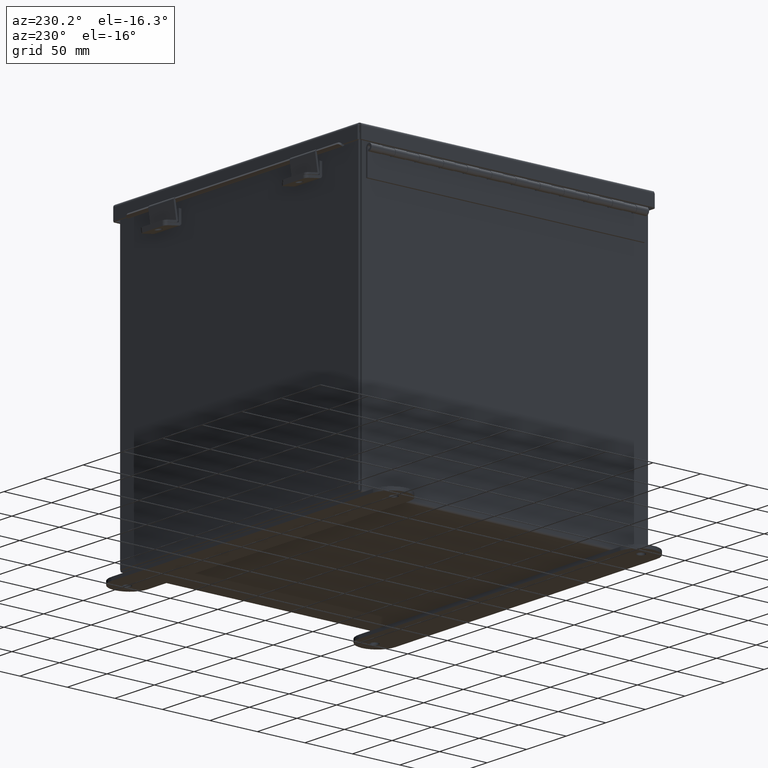
[diagram: clean part render]
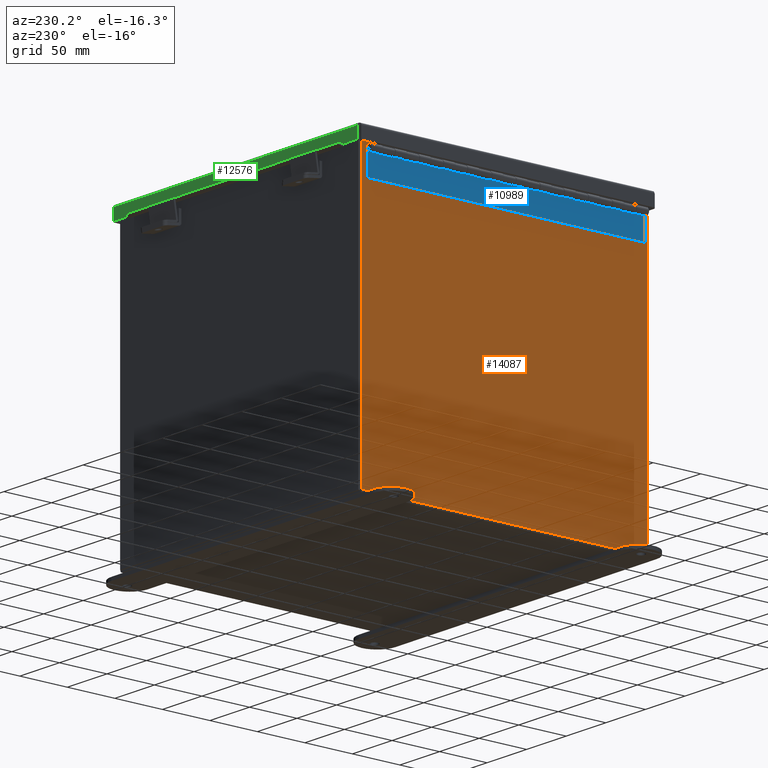
[diagram: same view with three faces highlighted in distinct colors, each labeled with its STEP entity id]
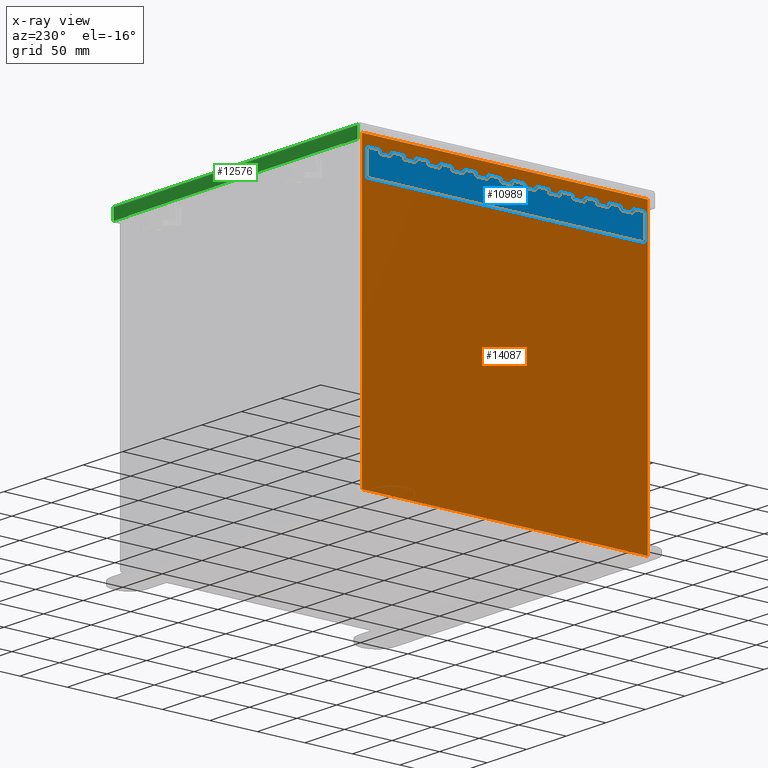
[diagram: x-ray of the same camera — body ghosted, the three highlighted faces saturated]
A machine part, auxiliary view with three faces highlighted in distinct colors.
The next image is the same camera in x-ray (body ghosted, the three faces saturated) — at least one of them is partly hidden behind the body in this view.
Their STEP definitions:

[orange] entity #14087 — the highlighted planar face has unit normal (1, 0, 0).
#174 = AXIS2_PLACEMENT_3D ( 'NONE', #1804, #10420, #3012 ) ;
#537 = ORIENTED_EDGE ( 'NONE', *, *, #7138, .T. ) ;
#1182 = CARTESIAN_POINT ( 'NONE',  ( -6.000000000000040000, -5.925299999999998200, 11.83759999999999800 ) ) ;
#1528 = LINE ( 'NONE', #1182, #14268 ) ;
#1804 = CARTESIAN_POINT ( 'NONE',  ( -5.999999999999998200, 0.0000000000000000000, -2.128280327564064900E-014 ) ) ;
#1941 = DIRECTION ( 'NONE',  ( 3.503965158194252100E-015, 0.0000000000000000000, -1.000000000000000000 ) ) ;
#2165 = CARTESIAN_POINT ( 'NONE',  ( -6.000000000000040000, 5.925300000000000000, 11.83759999999999800 ) ) ;
#2278 = EDGE_CURVE ( 'NONE', #14693, #3308, #6815, .T. ) ;
#2598 = CARTESIAN_POINT ( 'NONE',  ( -5.999999999999998200, -5.925300000000000000, -2.019006407817494600E-014 ) ) ;
#2798 = CARTESIAN_POINT ( 'NONE',  ( -5.999999999999998200, 5.925300000000000000, 0.01299999999999984300 ) ) ;
#3012 = DIRECTION ( 'NONE',  ( 3.503965158194251300E-015, 0.0000000000000000000, -1.000000000000000000 ) ) ;
#3308 = VERTEX_POINT ( 'NONE', #14608 ) ;
#3341 = VECTOR ( 'NONE', #5081, 39.37007874015748100 ) ;
#4208 = VERTEX_POINT ( 'NONE', #2165 ) ;
#4480 = EDGE_CURVE ( 'NONE', #14693, #12380, #6660, .T. ) ;
#4834 = EDGE_CURVE ( 'NONE', #4208, #3308, #15500, .T. ) ;
#5081 = DIRECTION ( 'NONE',  ( -3.503965158194252100E-015, 1.844192188523290500E-016, 1.000000000000000000 ) ) ;
#5639 = VECTOR ( 'NONE', #10175, 39.37007874015748100 ) ;
#6077 = DIRECTION ( 'NONE',  ( 0.0000000000000000000, 1.000000000000000000, 0.0000000000000000000 ) ) ;
#6614 = FACE_OUTER_BOUND ( 'NONE', #11906, .T. ) ;
#6660 = LINE ( 'NONE', #2598, #3341 ) ;
#6815 = LINE ( 'NONE', #2798, #5639 ) ;
#6827 = CARTESIAN_POINT ( 'NONE',  ( -6.000000000000040000, -5.925299999999997300, 11.83759999999999800 ) ) ;
#7138 = EDGE_CURVE ( 'NONE', #12380, #4208, #1528, .T. ) ;
#7150 = ORIENTED_EDGE ( 'NONE', *, *, #4480, .T. ) ;
#8955 = VECTOR ( 'NONE', #1941, 39.37007874015748100 ) ;
#9684 = CARTESIAN_POINT ( 'NONE',  ( -5.999999999999998200, -5.925299999999999100, 0.01299999999999984300 ) ) ;
#10175 = DIRECTION ( 'NONE',  ( -0.0000000000000000000, 1.000000000000000000, -0.0000000000000000000 ) ) ;
#10420 = DIRECTION ( 'NONE',  ( 1.000000000000000000, 0.0000000000000000000, 3.503965158194251300E-015 ) ) ;
#10552 = CARTESIAN_POINT ( 'NONE',  ( -5.999999999999998200, 5.925300000000000000, -2.128280327564064900E-014 ) ) ;
#11661 = ORIENTED_EDGE ( 'NONE', *, *, #4834, .T. ) ;
#11906 = EDGE_LOOP ( 'NONE', ( #537, #11661, #15857, #7150 ) ) ;
#12380 = VERTEX_POINT ( 'NONE', #6827 ) ;
#12856 = PLANE ( 'NONE',  #174 ) ;
#14087 = ADVANCED_FACE ( 'NONE', ( #6614 ), #12856, .F. ) ;
#14268 = VECTOR ( 'NONE', #6077, 39.37007874015748100 ) ;
#14608 = CARTESIAN_POINT ( 'NONE',  ( -5.999999999999998200, 5.925300000000000000, 0.01299999999999984300 ) ) ;
#14693 = VERTEX_POINT ( 'NONE', #9684 ) ;
#15500 = LINE ( 'NONE', #10552, #8955 ) ;
#15857 = ORIENTED_EDGE ( 'NONE', *, *, #2278, .F. ) ;

[blue] entity #10989 — the highlighted planar face has unit normal (1, -0, 0).
#132 = LINE ( 'NONE', #13909, #12868 ) ;
#140 = PLANE ( 'NONE',  #15943 ) ;
#177 = CARTESIAN_POINT ( 'NONE',  ( 0.0000000000000000000, 5.000000000000000000, 0.0000000000000000000 ) ) ;
#252 = VERTEX_POINT ( 'NONE', #8778 ) ;
#255 = ORIENTED_EDGE ( 'NONE', *, *, #9895, .F. ) ;
#285 = ORIENTED_EDGE ( 'NONE', *, *, #1126, .F. ) ;
#291 = DIRECTION ( 'NONE',  ( -1.000000000000000000, -0.0000000000000000000, -0.0000000000000000000 ) ) ;
#342 = LINE ( 'NONE', #4831, #15945 ) ;
#415 = VERTEX_POINT ( 'NONE', #5356 ) ;
#457 = LINE ( 'NONE', #9236, #13198 ) ;
#483 = DIRECTION ( 'NONE',  ( -1.000000000000000000, 8.005415366049128100E-015, 0.0000000000000000000 ) ) ;
#571 = EDGE_CURVE ( 'NONE', #9835, #7305, #10292, .T. ) ;
#632 = CARTESIAN_POINT ( 'NONE',  ( 0.2730000000000000200, 5.499999999999997300, 0.0000000000000000000 ) ) ;
#649 = CARTESIAN_POINT ( 'NONE',  ( 0.1365000000000000100, 0.0000000000000000000, -1.707404996040164500E-017 ) ) ;
#684 = CARTESIAN_POINT ( 'NONE',  ( 0.2730000000000000200, 0.9999999999999992200, 0.0000000000000000000 ) ) ;
#706 = VECTOR ( 'NONE', #2131, 39.37007874015748100 ) ;
#717 = ORIENTED_EDGE ( 'NONE', *, *, #2409, .F. ) ;
#790 = CARTESIAN_POINT ( 'NONE',  ( 0.2730000000000000200, 10.49999999999999800, 0.0000000000000000000 ) ) ;
#796 = VERTEX_POINT ( 'NONE', #3685 ) ;
#841 = ORIENTED_EDGE ( 'NONE', *, *, #571, .F. ) ;
#1110 = VERTEX_POINT ( 'NONE', #14159 ) ;
#1126 = EDGE_CURVE ( 'NONE', #15247, #3750, #457, .T. ) ;
#1204 = CARTESIAN_POINT ( 'NONE',  ( 0.2730000000000000200, 4.499999999999998200, 0.0000000000000000000 ) ) ;
#1214 = CARTESIAN_POINT ( 'NONE',  ( 0.0000000000000000000, 2.999999999999999600, 0.0000000000000000000 ) ) ;
#1225 = VERTEX_POINT ( 'NONE', #10644 ) ;
#1231 = VERTEX_POINT ( 'NONE', #4432 ) ;
#1240 = CARTESIAN_POINT ( 'NONE',  ( 0.1365000000000000100, 0.0000000000000000000, -1.707404996040164500E-017 ) ) ;
#1290 = ORIENTED_EDGE ( 'NONE', *, *, #2700, .F. ) ;
#1349 = VERTEX_POINT ( 'NONE', #8111 ) ;
#1380 = DIRECTION ( 'NONE',  ( 0.0000000000000000000, 0.0000000000000000000, -1.000000000000000000 ) ) ;
#1430 = ORIENTED_EDGE ( 'NONE', *, *, #12213, .F. ) ;
#1503 = DIRECTION ( 'NONE',  ( 0.0000000000000000000, 1.000000000000000000, 0.0000000000000000000 ) ) ;
#1504 = CARTESIAN_POINT ( 'NONE',  ( 0.2730000000000000200, -2.999999999999999600, 0.0000000000000000000 ) ) ;
#1510 = ORIENTED_EDGE ( 'NONE', *, *, #10569, .F. ) ;
#1602 = VECTOR ( 'NONE', #5959, 39.37007874015748100 ) ;
#1630 = DIRECTION ( 'NONE',  ( 0.0000000000000000000, 1.000000000000000000, 0.0000000000000000000 ) ) ;
#1631 = CARTESIAN_POINT ( 'NONE',  ( 0.1365000000000000100, 0.0000000000000000000, -1.707404996040164500E-017 ) ) ;
#1632 = EDGE_CURVE ( 'NONE', #2875, #2444, #3693, .T. ) ;
#1667 = EDGE_CURVE ( 'NONE', #10421, #1231, #9486, .T. ) ;
#1668 = CARTESIAN_POINT ( 'NONE',  ( 0.2730000000000000200, 7.499999999999998200, 0.0000000000000000000 ) ) ;
#1728 = VERTEX_POINT ( 'NONE', #4361 ) ;
#1875 = CARTESIAN_POINT ( 'NONE',  ( 0.1365000000000000100, 2.500000000000000000, -1.707404996040164500E-017 ) ) ;
#1944 = CARTESIAN_POINT ( 'NONE',  ( 0.1365000000000000100, 8.000000000000000000, -1.707404996040164500E-017 ) ) ;
#1945 = VECTOR ( 'NONE', #7903, 39.37007874015748100 ) ;
#2101 = VECTOR ( 'NONE', #15388, 39.37007874015748100 ) ;
#2131 = DIRECTION ( 'NONE',  ( 0.0000000000000000000, 1.000000000000000000, 0.0000000000000000000 ) ) ;
#2158 = ORIENTED_EDGE ( 'NONE', *, *, #14478, .F. ) ;
#2378 = EDGE_CURVE ( 'NONE', #9578, #5445, #4477, .T. ) ;
#2409 = EDGE_CURVE ( 'NONE', #9728, #8779, #13585, .T. ) ;
#2416 = VECTOR ( 'NONE', #4111, 39.37007874015748100 ) ;
#2444 = VERTEX_POINT ( 'NONE', #13006 ) ;
#2453 = VERTEX_POINT ( 'NONE', #1875 ) ;
#2474 = ORIENTED_EDGE ( 'NONE', *, *, #3851, .F. ) ;
#2491 = LINE ( 'NONE', #9253, #2101 ) ;
#2535 = CARTESIAN_POINT ( 'NONE',  ( 0.0000000000000000000, 8.999999999999998200, 0.0000000000000000000 ) ) ;
#2578 = DIRECTION ( 'NONE',  ( -1.000000000000000000, 8.005415366049128100E-015, 0.0000000000000000000 ) ) ;
#2590 = ORIENTED_EDGE ( 'NONE', *, *, #14612, .T. ) ;
#2617 = LINE ( 'NONE', #5812, #12064 ) ;
#2639 = VECTOR ( 'NONE', #9365, 39.37007874015748100 ) ;
#2676 = CARTESIAN_POINT ( 'NONE',  ( 0.1365000000000000100, 1.499999999999999800, -1.707404996040164500E-017 ) ) ;
#2689 = LINE ( 'NONE', #9520, #15399 ) ;
#2700 = EDGE_CURVE ( 'NONE', #13167, #1225, #342, .T. ) ;
#2780 = CARTESIAN_POINT ( 'NONE',  ( 0.0000000000000000000, 5.999999999999999100, 0.0000000000000000000 ) ) ;
#2820 = DIRECTION ( 'NONE',  ( 0.0000000000000000000, 1.000000000000000000, 0.0000000000000000000 ) ) ;
#2872 = VECTOR ( 'NONE', #13928, 39.37007874015748100 ) ;
#2875 = VERTEX_POINT ( 'NONE', #7699 ) ;
#2939 = CARTESIAN_POINT ( 'NONE',  ( 8.405686134351585600E-014, 5.500000000000000000, 0.0000000000000000000 ) ) ;
#2967 = LINE ( 'NONE', #6437, #5860 ) ;
#2991 = VERTEX_POINT ( 'NONE', #15318 ) ;
#2996 = DIRECTION ( 'NONE',  ( 1.000000000000000000, 0.0000000000000000000, 0.0000000000000000000 ) ) ;
#3002 = CARTESIAN_POINT ( 'NONE',  ( 0.2730000000000000200, -8.000000000000000000, 0.0000000000000000000 ) ) ;
#3013 = ORIENTED_EDGE ( 'NONE', *, *, #4991, .T. ) ;
#3046 = VERTEX_POINT ( 'NONE', #10474 ) ;
#3082 = LINE ( 'NONE', #11215, #5987 ) ;
#3125 = VECTOR ( 'NONE', #15386, 39.37007874015748100 ) ;
#3131 = LINE ( 'NONE', #15240, #6038 ) ;
#3140 = VERTEX_POINT ( 'NONE', #10631 ) ;
#3256 = VECTOR ( 'NONE', #8551, 39.37007874015748100 ) ;
#3283 = ORIENTED_EDGE ( 'NONE', *, *, #3718, .F. ) ;
#3328 = LINE ( 'NONE', #14759, #9521 ) ;
#3433 = DIRECTION ( 'NONE',  ( -1.000000000000000000, 8.005415366049128100E-015, 0.0000000000000000000 ) ) ;
#3445 = VECTOR ( 'NONE', #13690, 39.37007874015748100 ) ;
#3453 = VERTEX_POINT ( 'NONE', #7449 ) ;
#3587 = VERTEX_POINT ( 'NONE', #7290 ) ;
#3675 = ORIENTED_EDGE ( 'NONE', *, *, #13010, .F. ) ;
#3685 = CARTESIAN_POINT ( 'NONE',  ( 0.2730000000000000200, 11.00000000000000000, 0.0000000000000000000 ) ) ;
#3693 = LINE ( 'NONE', #11620, #9880 ) ;
#3718 = EDGE_CURVE ( 'NONE', #9635, #8692, #13051, .T. ) ;
#3727 = VECTOR ( 'NONE', #9293, 39.37007874015748100 ) ;
#3750 = VERTEX_POINT ( 'NONE', #3950 ) ;
#3753 = DIRECTION ( 'NONE',  ( -1.000000000000000000, 0.0000000000000000000, 0.0000000000000000000 ) ) ;
#3783 = LINE ( 'NONE', #649, #10734 ) ;
#3823 = CARTESIAN_POINT ( 'NONE',  ( 0.2730000000000000200, -1.000000000000000000, 0.0000000000000000000 ) ) ;
#3824 = CARTESIAN_POINT ( 'NONE',  ( 0.2730000000000000200, 1.499999999999997600, 0.0000000000000000000 ) ) ;
#3829 = VERTEX_POINT ( 'NONE', #13940 ) ;
#3838 = ORIENTED_EDGE ( 'NONE', *, *, #9959, .T. ) ;
#3851 = EDGE_CURVE ( 'NONE', #3829, #9323, #14764, .T. ) ;
#3894 = ORIENTED_EDGE ( 'NONE', *, *, #14808, .T. ) ;
#3950 = CARTESIAN_POINT ( 'NONE',  ( 0.1365000000000000100, 4.000000000000000000, -1.707404996040164500E-017 ) ) ;
#4012 = EDGE_CURVE ( 'NONE', #11844, #13026, #2617, .T. ) ;
#4052 = DIRECTION ( 'NONE',  ( -1.000000000000000000, 8.005415366049128100E-015, 0.0000000000000000000 ) ) ;
#4061 = VECTOR ( 'NONE', #13382, 39.37007874015748100 ) ;
#4111 = DIRECTION ( 'NONE',  ( 0.0000000000000000000, 1.000000000000000000, 0.0000000000000000000 ) ) ;
#4153 = DIRECTION ( 'NONE',  ( 0.0000000000000000000, 1.000000000000000000, 0.0000000000000000000 ) ) ;
#4184 = DIRECTION ( 'NONE',  ( -1.000000000000000000, 0.0000000000000000000, 0.0000000000000000000 ) ) ;
#4361 = CARTESIAN_POINT ( 'NONE',  ( 0.1364999999999999000, 0.0000000000000000000, 0.0000000000000000000 ) ) ;
#4386 = EDGE_CURVE ( 'NONE', #1225, #2453, #14365, .T. ) ;
#4412 = VECTOR ( 'NONE', #3753, 39.37007874015748100 ) ;
#4432 = CARTESIAN_POINT ( 'NONE',  ( 0.2730000000000000200, 2.999999999999999600, 0.0000000000000000000 ) ) ;
#4477 = LINE ( 'NONE', #7918, #7777 ) ;
#4515 = VECTOR ( 'NONE', #8622, 39.37007874015748100 ) ;
#4523 = CARTESIAN_POINT ( 'NONE',  ( 0.1365000000000000100, 5.000000000000000000, -1.707404996040164500E-017 ) ) ;
#4524 = EDGE_CURVE ( 'NONE', #9250, #13026, #2967, .T. ) ;
#4557 = VECTOR ( 'NONE', #4153, 39.37007874015748100 ) ;
#4632 = ORIENTED_EDGE ( 'NONE', *, *, #8047, .T. ) ;
#4799 = VERTEX_POINT ( 'NONE', #684 ) ;
#4814 = CARTESIAN_POINT ( 'NONE',  ( 0.2730000000000000200, 4.000000000000000000, 0.0000000000000000000 ) ) ;
#4831 = CARTESIAN_POINT ( 'NONE',  ( 0.0000000000000000000, 1.999999999999999300, 0.0000000000000000000 ) ) ;
#4869 = LINE ( 'NONE', #13375, #1602 ) ;
#4991 = EDGE_CURVE ( 'NONE', #6469, #1349, #3328, .T. ) ;
#4995 = CARTESIAN_POINT ( 'NONE',  ( 1.136499999999999800, 11.50000000000000000, 0.0000000000000000000 ) ) ;
#5137 = CARTESIAN_POINT ( 'NONE',  ( 0.1365000000000000100, 0.0000000000000000000, -1.707404996040164500E-017 ) ) ;
#5231 = LINE ( 'NONE', #2939, #1945 ) ;
#5242 = DIRECTION ( 'NONE',  ( 0.0000000000000000000, 1.000000000000000000, 0.0000000000000000000 ) ) ;
#5250 = EDGE_CURVE ( 'NONE', #7305, #252, #3131, .T. ) ;
#5284 = CARTESIAN_POINT ( 'NONE',  ( 8.405686134351585600E-014, 9.500000000000000000, 0.0000000000000000000 ) ) ;
#5330 = LINE ( 'NONE', #10244, #9004 ) ;
#5352 = LINE ( 'NONE', #15892, #8246 ) ;
#5356 = CARTESIAN_POINT ( 'NONE',  ( 0.1365000000000000100, 11.50000000000000000, -1.707404996040164500E-017 ) ) ;
#5377 = LINE ( 'NONE', #5284, #2872 ) ;
#5445 = VERTEX_POINT ( 'NONE', #6948 ) ;
#5523 = DIRECTION ( 'NONE',  ( 0.0000000000000000000, 1.000000000000000000, 0.0000000000000000000 ) ) ;
#5565 = LINE ( 'NONE', #8847, #11765 ) ;
#5636 = LINE ( 'NONE', #8343, #11836 ) ;
#5751 = ORIENTED_EDGE ( 'NONE', *, *, #12933, .F. ) ;
#5767 = LINE ( 'NONE', #14565, #9435 ) ;
#5800 = VECTOR ( 'NONE', #2996, 39.37007874015748100 ) ;
#5812 = CARTESIAN_POINT ( 'NONE',  ( 8.405686134351585600E-014, 10.50000000000000000, 0.0000000000000000000 ) ) ;
#5826 = EDGE_CURVE ( 'NONE', #10421, #2453, #5636, .T. ) ;
#5860 = VECTOR ( 'NONE', #1503, 39.37007874015748100 ) ;
#5885 = EDGE_CURVE ( 'NONE', #6469, #9315, #4869, .T. ) ;
#5959 = DIRECTION ( 'NONE',  ( 0.0000000000000000000, 1.000000000000000000, 0.0000000000000000000 ) ) ;
#5971 = CARTESIAN_POINT ( 'NONE',  ( 0.2730000000000000200, 0.0000000000000000000, 0.0000000000000000000 ) ) ;
#5987 = VECTOR ( 'NONE', #2578, 39.37007874015748100 ) ;
#6000 = ORIENTED_EDGE ( 'NONE', *, *, #8974, .F. ) ;
#6038 = VECTOR ( 'NONE', #4184, 39.37007874015748100 ) ;
#6095 = EDGE_CURVE ( 'NONE', #3140, #9635, #12007, .T. ) ;
#6129 = DIRECTION ( 'NONE',  ( -1.000000000000000000, 8.005415366049128100E-015, 0.0000000000000000000 ) ) ;
#6316 = ORIENTED_EDGE ( 'NONE', *, *, #5885, .F. ) ;
#6437 = CARTESIAN_POINT ( 'NONE',  ( 0.1365000000000000100, 0.0000000000000000000, -1.707404996040164500E-017 ) ) ;
#6469 = VERTEX_POINT ( 'NONE', #1204 ) ;
#6514 = DIRECTION ( 'NONE',  ( -1.000000000000000000, 0.0000000000000000000, 0.0000000000000000000 ) ) ;
#6651 = CARTESIAN_POINT ( 'NONE',  ( 0.1365000000000000100, 0.0000000000000000000, -1.707404996040164500E-017 ) ) ;
#6662 = CARTESIAN_POINT ( 'NONE',  ( 0.2730000000000000200, 8.499999999999996400, 0.0000000000000000000 ) ) ;
#6759 = EDGE_LOOP ( 'NONE', ( #10434, #12892, #2590, #8664, #10016, #8496, #9090, #255, #9461, #8441, #12550, #14039, #4632, #2474, #11687, #14217, #3838, #717, #14108, #2158, #14555, #1430, #12361, #841, #11405, #3283, #12055, #6000, #12448, #1510, #10902, #6316, #3013, #3675, #285, #7750, #14484, #5751, #15553, #7904, #9270, #13997, #1290, #10751, #3894, #11841, #12381, #10121 ) ) ;
#6760 = LINE ( 'NONE', #9938, #3445 ) ;
#6837 = EDGE_CURVE ( 'NONE', #4799, #2991, #15228, .T. ) ;
#6865 = VECTOR ( 'NONE', #12541, 39.37007874015748100 ) ;
#6874 = CARTESIAN_POINT ( 'NONE',  ( 0.2730000000000000200, -4.000000000000000000, 0.0000000000000000000 ) ) ;
#6900 = LINE ( 'NONE', #12765, #13081 ) ;
#6945 = VERTEX_POINT ( 'NONE', #4523 ) ;
#6948 = CARTESIAN_POINT ( 'NONE',  ( 0.1365000000000000100, 7.500000000000000000, -1.707404996040164500E-017 ) ) ;
#6969 = CARTESIAN_POINT ( 'NONE',  ( 0.1365000000000000100, 3.500000000000000400, -1.707404996040164500E-017 ) ) ;
#7061 = DIRECTION ( 'NONE',  ( -1.000000000000000000, 8.005415366049128100E-015, 0.0000000000000000000 ) ) ;
#7088 = LINE ( 'NONE', #177, #10357 ) ;
#7191 = DIRECTION ( 'NONE',  ( -1.000000000000000000, 0.0000000000000000000, 0.0000000000000000000 ) ) ;
#7200 = CARTESIAN_POINT ( 'NONE',  ( 0.1365000000000000100, 8.500000000000000000, -1.707404996040164500E-017 ) ) ;
#7273 = DIRECTION ( 'NONE',  ( 0.0000000000000000000, 1.000000000000000000, 0.0000000000000000000 ) ) ;
#7290 = CARTESIAN_POINT ( 'NONE',  ( 0.1365000000000000100, 11.00000000000000000, -1.707404996040164500E-017 ) ) ;
#7305 = VERTEX_POINT ( 'NONE', #12483 ) ;
#7449 = CARTESIAN_POINT ( 'NONE',  ( 0.2730000000000000200, 9.499999999999998200, 0.0000000000000000000 ) ) ;
#7467 = CARTESIAN_POINT ( 'NONE',  ( 0.1365000000000000100, 0.0000000000000000000, -1.707404996040164500E-017 ) ) ;
#7572 = DIRECTION ( 'NONE',  ( 0.0000000000000000000, 1.000000000000000000, 0.0000000000000000000 ) ) ;
#7643 = CARTESIAN_POINT ( 'NONE',  ( 0.2730000000000000200, 8.999999999999998200, 0.0000000000000000000 ) ) ;
#7650 = VERTEX_POINT ( 'NONE', #6969 ) ;
#7699 = CARTESIAN_POINT ( 'NONE',  ( 1.136500000000000100, 0.0000000000000000000, 0.0000000000000000000 ) ) ;
#7750 = ORIENTED_EDGE ( 'NONE', *, *, #13426, .F. ) ;
#7759 = EDGE_CURVE ( 'NONE', #2991, #8648, #12324, .T. ) ;
#7777 = VECTOR ( 'NONE', #483, 39.37007874015748100 ) ;
#7806 = EDGE_CURVE ( 'NONE', #1728, #14288, #5352, .T. ) ;
#7890 = EDGE_CURVE ( 'NONE', #12125, #3829, #11153, .T. ) ;
#7903 = DIRECTION ( 'NONE',  ( -1.000000000000000000, 8.005415366049128100E-015, 0.0000000000000000000 ) ) ;
#7904 = ORIENTED_EDGE ( 'NONE', *, *, #1667, .F. ) ;
#7918 = CARTESIAN_POINT ( 'NONE',  ( 8.405686134351585600E-014, 7.500000000000000000, 0.0000000000000000000 ) ) ;
#7982 = CARTESIAN_POINT ( 'NONE',  ( 0.2730000000000000200, 0.4999999999999973900, 0.0000000000000000000 ) ) ;
#8047 = EDGE_CURVE ( 'NONE', #3453, #9323, #5377, .T. ) ;
#8050 = VECTOR ( 'NONE', #8702, 39.37007874015748100 ) ;
#8111 = CARTESIAN_POINT ( 'NONE',  ( 0.1365000000000000100, 4.500000000000000900, -1.707404996040164500E-017 ) ) ;
#8246 = VECTOR ( 'NONE', #7273, 39.37007874015748100 ) ;
#8294 = CARTESIAN_POINT ( 'NONE',  ( 0.2730000000000000200, 6.499999999999998200, 0.0000000000000000000 ) ) ;
#8296 = CARTESIAN_POINT ( 'NONE',  ( 0.2730000000000000200, 1.999999999999999300, 0.0000000000000000000 ) ) ;
#8343 = CARTESIAN_POINT ( 'NONE',  ( 8.405686134351585600E-014, 2.500000000000000000, 0.0000000000000000000 ) ) ;
#8405 = CARTESIAN_POINT ( 'NONE',  ( 0.1365000000000000100, 0.0000000000000000000, -1.707404996040164500E-017 ) ) ;
#8441 = ORIENTED_EDGE ( 'NONE', *, *, #4524, .F. ) ;
#8496 = ORIENTED_EDGE ( 'NONE', *, *, #8906, .F. ) ;
#8551 = DIRECTION ( 'NONE',  ( -1.000000000000000000, 8.005415366049128100E-015, 0.0000000000000000000 ) ) ;
#8622 = DIRECTION ( 'NONE',  ( 0.0000000000000000000, 1.000000000000000000, 0.0000000000000000000 ) ) ;
#8648 = VERTEX_POINT ( 'NONE', #2676 ) ;
#8651 = DIRECTION ( 'NONE',  ( -1.000000000000000000, 0.0000000000000000000, 0.0000000000000000000 ) ) ;
#8664 = ORIENTED_EDGE ( 'NONE', *, *, #1632, .T. ) ;
#8672 = VECTOR ( 'NONE', #13020, 39.37007874015748100 ) ;
#8692 = VERTEX_POINT ( 'NONE', #12611 ) ;
#8702 = DIRECTION ( 'NONE',  ( 0.0000000000000000000, 1.000000000000000000, 0.0000000000000000000 ) ) ;
#8778 = CARTESIAN_POINT ( 'NONE',  ( 0.1365000000000000100, 7.000000000000000000, -1.707404996040164500E-017 ) ) ;
#8779 = VERTEX_POINT ( 'NONE', #7200 ) ;
#8847 = CARTESIAN_POINT ( 'NONE',  ( 0.0000000000000000000, 11.50000000000000000, 0.0000000000000000000 ) ) ;
#8906 = EDGE_CURVE ( 'NONE', #3587, #415, #14614, .T. ) ;
#8974 = EDGE_CURVE ( 'NONE', #11761, #3140, #6900, .T. ) ;
#8997 = VECTOR ( 'NONE', #4052, 39.37007874015748100 ) ;
#9004 = VECTOR ( 'NONE', #1630, 39.37007874015748100 ) ;
#9024 = VECTOR ( 'NONE', #9641, 39.37007874015748100 ) ;
#9082 = LINE ( 'NONE', #9153, #5800 ) ;
#9090 = ORIENTED_EDGE ( 'NONE', *, *, #10903, .F. ) ;
#9153 = CARTESIAN_POINT ( 'NONE',  ( 0.0000000000000000000, 0.0000000000000000000, 0.0000000000000000000 ) ) ;
#9229 = LINE ( 'NONE', #13538, #10963 ) ;
#9236 = CARTESIAN_POINT ( 'NONE',  ( 0.0000000000000000000, 4.000000000000000000, 0.0000000000000000000 ) ) ;
#9250 = VERTEX_POINT ( 'NONE', #15740 ) ;
#9253 = CARTESIAN_POINT ( 'NONE',  ( 0.1365000000000000100, 0.0000000000000000000, -1.707404996040164500E-017 ) ) ;
#9270 = ORIENTED_EDGE ( 'NONE', *, *, #5826, .T. ) ;
#9280 = LINE ( 'NONE', #3823, #12185 ) ;
#9293 = DIRECTION ( 'NONE',  ( 0.0000000000000000000, 1.000000000000000000, 0.0000000000000000000 ) ) ;
#9315 = VERTEX_POINT ( 'NONE', #12253 ) ;
#9323 = VERTEX_POINT ( 'NONE', #13570 ) ;
#9365 = DIRECTION ( 'NONE',  ( -1.000000000000000000, 0.0000000000000000000, 0.0000000000000000000 ) ) ;
#9394 = VECTOR ( 'NONE', #7191, 39.37007874015748100 ) ;
#9421 = VERTEX_POINT ( 'NONE', #3824 ) ;
#9435 = VECTOR ( 'NONE', #3433, 39.37007874015748100 ) ;
#9461 = ORIENTED_EDGE ( 'NONE', *, *, #4012, .T. ) ;
#9486 = LINE ( 'NONE', #3002, #10263 ) ;
#9513 = CARTESIAN_POINT ( 'NONE',  ( 0.2730000000000000200, -10.00000000000000000, 0.0000000000000000000 ) ) ;
#9520 = CARTESIAN_POINT ( 'NONE',  ( 0.2730000000000000200, -9.000000000000000000, 0.0000000000000000000 ) ) ;
#9521 = VECTOR ( 'NONE', #6129, 39.37007874015748100 ) ;
#9537 = EDGE_CURVE ( 'NONE', #14644, #14288, #15541, .T. ) ;
#9578 = VERTEX_POINT ( 'NONE', #1668 ) ;
#9635 = VERTEX_POINT ( 'NONE', #12844 ) ;
#9641 = DIRECTION ( 'NONE',  ( 0.0000000000000000000, 1.000000000000000000, 0.0000000000000000000 ) ) ;
#9728 = VERTEX_POINT ( 'NONE', #1944 ) ;
#9774 = LINE ( 'NONE', #14569, #9394 ) ;
#9835 = VERTEX_POINT ( 'NONE', #8294 ) ;
#9880 = VECTOR ( 'NONE', #10346, 39.37007874015748100 ) ;
#9895 = EDGE_CURVE ( 'NONE', #11844, #796, #13535, .T. ) ;
#9938 = CARTESIAN_POINT ( 'NONE',  ( 8.405686134351585600E-014, 3.500000000000000400, 0.0000000000000000000 ) ) ;
#9959 = EDGE_CURVE ( 'NONE', #14036, #8779, #12757, .T. ) ;
#9998 = DIRECTION ( 'NONE',  ( -1.000000000000000000, 0.0000000000000000000, -0.0000000000000000000 ) ) ;
#10016 = ORIENTED_EDGE ( 'NONE', *, *, #15914, .T. ) ;
#10121 = ORIENTED_EDGE ( 'NONE', *, *, #11904, .F. ) ;
#10162 = LINE ( 'NONE', #9513, #706 ) ;
#10188 = FACE_OUTER_BOUND ( 'NONE', #6759, .T. ) ;
#10244 = CARTESIAN_POINT ( 'NONE',  ( 0.2730000000000000200, -2.000000000000000000, 0.0000000000000000000 ) ) ;
#10263 = VECTOR ( 'NONE', #12902, 39.37007874015748100 ) ;
#10267 = VECTOR ( 'NONE', #5523, 39.37007874015748100 ) ;
#10292 = LINE ( 'NONE', #6874, #3727 ) ;
#10346 = DIRECTION ( 'NONE',  ( -1.187759997245331800E-017, 1.000000000000000000, 0.0000000000000000000 ) ) ;
#10357 = VECTOR ( 'NONE', #13740, 39.37007874015748100 ) ;
#10421 = VERTEX_POINT ( 'NONE', #12630 ) ;
#10434 = ORIENTED_EDGE ( 'NONE', *, *, #9537, .T. ) ;
#10474 = CARTESIAN_POINT ( 'NONE',  ( 0.1365000000000000100, 5.500000000000000000, -1.707404996040164500E-017 ) ) ;
#10484 = DIRECTION ( 'NONE',  ( -1.000000000000000000, 0.0000000000000000000, 0.0000000000000000000 ) ) ;
#10569 = EDGE_CURVE ( 'NONE', #6945, #3046, #2491, .T. ) ;
#10617 = CARTESIAN_POINT ( 'NONE',  ( 0.0000000000000000000, 8.000000000000000000, 0.0000000000000000000 ) ) ;
#10631 = CARTESIAN_POINT ( 'NONE',  ( 0.2730000000000000200, 5.999999999999999100, 0.0000000000000000000 ) ) ;
#10644 = CARTESIAN_POINT ( 'NONE',  ( 0.1365000000000000100, 1.999999999999999300, -1.707404996040164500E-017 ) ) ;
#10734 = VECTOR ( 'NONE', #12968, 39.37007874015748100 ) ;
#10751 = ORIENTED_EDGE ( 'NONE', *, *, #10772, .F. ) ;
#10772 = EDGE_CURVE ( 'NONE', #9421, #13167, #2689, .T. ) ;
#10902 = ORIENTED_EDGE ( 'NONE', *, *, #11688, .F. ) ;
#10903 = EDGE_CURVE ( 'NONE', #796, #3587, #9229, .T. ) ;
#10963 = VECTOR ( 'NONE', #14746, 39.37007874015748100 ) ;
#10989 = ADVANCED_FACE ( 'NONE', ( #10188 ), #140, .F. ) ;
#11153 = LINE ( 'NONE', #2535, #4412 ) ;
#11215 = CARTESIAN_POINT ( 'NONE',  ( 8.405686134351585600E-014, 1.499999999999999800, 0.0000000000000000000 ) ) ;
#11342 = CARTESIAN_POINT ( 'NONE',  ( 0.2730000000000000200, 8.000000000000000000, 0.0000000000000000000 ) ) ;
#11405 = ORIENTED_EDGE ( 'NONE', *, *, #15693, .T. ) ;
#11432 = LINE ( 'NONE', #1504, #14686 ) ;
#11455 = CARTESIAN_POINT ( 'NONE',  ( 8.405686134351585600E-014, 0.4999999999999996100, 0.0000000000000000000 ) ) ;
#11494 = EDGE_CURVE ( 'NONE', #13169, #9250, #9774, .T. ) ;
#11531 = LINE ( 'NONE', #6651, #4557 ) ;
#11620 = CARTESIAN_POINT ( 'NONE',  ( 1.136500000000000100, 0.0000000000000000000, 0.0000000000000000000 ) ) ;
#11687 = ORIENTED_EDGE ( 'NONE', *, *, #7890, .F. ) ;
#11688 = EDGE_CURVE ( 'NONE', #9315, #6945, #7088, .T. ) ;
#11761 = VERTEX_POINT ( 'NONE', #632 ) ;
#11765 = VECTOR ( 'NONE', #291, 39.37007874015748100 ) ;
#11770 = CARTESIAN_POINT ( 'NONE',  ( 0.1365000000000000100, 10.50000000000000000, -1.707404996040164500E-017 ) ) ;
#11785 = CARTESIAN_POINT ( 'NONE',  ( 0.0000000000000000000, 0.9999999999999992200, 0.0000000000000000000 ) ) ;
#11836 = VECTOR ( 'NONE', #15716, 39.37007874015748100 ) ;
#11841 = ORIENTED_EDGE ( 'NONE', *, *, #7759, .F. ) ;
#11844 = VERTEX_POINT ( 'NONE', #790 ) ;
#11904 = EDGE_CURVE ( 'NONE', #14644, #4799, #10162, .T. ) ;
#12007 = LINE ( 'NONE', #2780, #14908 ) ;
#12026 = EDGE_CURVE ( 'NONE', #1231, #1110, #15545, .T. ) ;
#12055 = ORIENTED_EDGE ( 'NONE', *, *, #6095, .F. ) ;
#12059 = DIRECTION ( 'NONE',  ( 0.0000000000000000000, 1.000000000000000000, 0.0000000000000000000 ) ) ;
#12064 = VECTOR ( 'NONE', #7061, 39.37007874015748100 ) ;
#12125 = VERTEX_POINT ( 'NONE', #7643 ) ;
#12185 = VECTOR ( 'NONE', #7572, 39.37007874015748100 ) ;
#12213 = EDGE_CURVE ( 'NONE', #252, #5445, #132, .T. ) ;
#12234 = CARTESIAN_POINT ( 'NONE',  ( 8.405686134351585600E-014, 8.500000000000000000, 0.0000000000000000000 ) ) ;
#12253 = CARTESIAN_POINT ( 'NONE',  ( 0.2730000000000000200, 5.000000000000000000, 0.0000000000000000000 ) ) ;
#12289 = VECTOR ( 'NONE', #8651, 39.37007874015748100 ) ;
#12324 = LINE ( 'NONE', #8405, #9024 ) ;
#12361 = ORIENTED_EDGE ( 'NONE', *, *, #5250, .F. ) ;
#12381 = ORIENTED_EDGE ( 'NONE', *, *, #6837, .F. ) ;
#12448 = ORIENTED_EDGE ( 'NONE', *, *, #14938, .T. ) ;
#12483 = CARTESIAN_POINT ( 'NONE',  ( 0.2730000000000000200, 7.000000000000000000, 0.0000000000000000000 ) ) ;
#12541 = DIRECTION ( 'NONE',  ( 0.0000000000000000000, 1.000000000000000000, 0.0000000000000000000 ) ) ;
#12550 = ORIENTED_EDGE ( 'NONE', *, *, #11494, .F. ) ;
#12611 = CARTESIAN_POINT ( 'NONE',  ( 0.1365000000000000100, 6.500000000000000000, -1.707404996040164500E-017 ) ) ;
#12630 = CARTESIAN_POINT ( 'NONE',  ( 0.2730000000000000200, 2.499999999999997800, 0.0000000000000000000 ) ) ;
#12757 = LINE ( 'NONE', #12234, #3256 ) ;
#12765 = CARTESIAN_POINT ( 'NONE',  ( 0.2730000000000000200, -5.000000000000000000, 0.0000000000000000000 ) ) ;
#12844 = CARTESIAN_POINT ( 'NONE',  ( 0.1365000000000000100, 5.999999999999999100, -1.707404996040164500E-017 ) ) ;
#12868 = VECTOR ( 'NONE', #2820, 39.37007874015748100 ) ;
#12872 = LINE ( 'NONE', #10617, #2639 ) ;
#12892 = ORIENTED_EDGE ( 'NONE', *, *, #7806, .F. ) ;
#12893 = EDGE_CURVE ( 'NONE', #14036, #12125, #5330, .T. ) ;
#12902 = DIRECTION ( 'NONE',  ( 0.0000000000000000000, 1.000000000000000000, 0.0000000000000000000 ) ) ;
#12933 = EDGE_CURVE ( 'NONE', #1110, #7650, #11531, .T. ) ;
#12951 = CARTESIAN_POINT ( 'NONE',  ( 0.1365000000000000100, 0.0000000000000000000, -1.707404996040164500E-017 ) ) ;
#12968 = DIRECTION ( 'NONE',  ( 0.0000000000000000000, 1.000000000000000000, 0.0000000000000000000 ) ) ;
#13006 = CARTESIAN_POINT ( 'NONE',  ( 1.136500000000000100, 11.50000000000000000, 0.0000000000000000000 ) ) ;
#13010 = EDGE_CURVE ( 'NONE', #3750, #1349, #3783, .T. ) ;
#13020 = DIRECTION ( 'NONE',  ( -1.000000000000000000, 0.0000000000000000000, 0.0000000000000000000 ) ) ;
#13026 = VERTEX_POINT ( 'NONE', #11770 ) ;
#13051 = LINE ( 'NONE', #5137, #6865 ) ;
#13072 = EDGE_CURVE ( 'NONE', #14431, #9728, #12872, .T. ) ;
#13081 = VECTOR ( 'NONE', #14003, 39.37007874015748100 ) ;
#13167 = VERTEX_POINT ( 'NONE', #8296 ) ;
#13169 = VERTEX_POINT ( 'NONE', #15679 ) ;
#13198 = VECTOR ( 'NONE', #10484, 39.37007874015748100 ) ;
#13375 = CARTESIAN_POINT ( 'NONE',  ( 0.2730000000000000200, -5.999999999999999100, 0.0000000000000000000 ) ) ;
#13382 = DIRECTION ( 'NONE',  ( 0.0000000000000000000, 1.000000000000000000, 0.0000000000000000000 ) ) ;
#13426 = EDGE_CURVE ( 'NONE', #15184, #15247, #13794, .T. ) ;
#13476 = DIRECTION ( 'NONE',  ( -1.000000000000000000, 0.0000000000000000000, 0.0000000000000000000 ) ) ;
#13535 = LINE ( 'NONE', #5971, #4061 ) ;
#13538 = CARTESIAN_POINT ( 'NONE',  ( 0.0000000000000000000, 11.00000000000000000, 0.0000000000000000000 ) ) ;
#13569 = CARTESIAN_POINT ( 'NONE',  ( 0.1365000000000000100, 0.4999999999999996100, -1.707404996040164500E-017 ) ) ;
#13570 = CARTESIAN_POINT ( 'NONE',  ( 0.1365000000000000100, 9.500000000000000000, -1.707404996040164500E-017 ) ) ;
#13585 = LINE ( 'NONE', #12951, #10267 ) ;
#13690 = DIRECTION ( 'NONE',  ( -1.000000000000000000, 8.005415366049128100E-015, 0.0000000000000000000 ) ) ;
#13740 = DIRECTION ( 'NONE',  ( -1.000000000000000000, 0.0000000000000000000, 0.0000000000000000000 ) ) ;
#13794 = LINE ( 'NONE', #14170, #3125 ) ;
#13909 = CARTESIAN_POINT ( 'NONE',  ( 0.1365000000000000100, 0.0000000000000000000, -1.707404996040164500E-017 ) ) ;
#13928 = DIRECTION ( 'NONE',  ( -1.000000000000000000, 8.005415366049128100E-015, 0.0000000000000000000 ) ) ;
#13940 = CARTESIAN_POINT ( 'NONE',  ( 0.1365000000000000100, 8.999999999999998200, -1.707404996040164500E-017 ) ) ;
#13997 = ORIENTED_EDGE ( 'NONE', *, *, #4386, .F. ) ;
#14003 = DIRECTION ( 'NONE',  ( 0.0000000000000000000, 1.000000000000000000, 0.0000000000000000000 ) ) ;
#14036 = VERTEX_POINT ( 'NONE', #6662 ) ;
#14039 = ORIENTED_EDGE ( 'NONE', *, *, #14375, .F. ) ;
#14108 = ORIENTED_EDGE ( 'NONE', *, *, #13072, .F. ) ;
#14159 = CARTESIAN_POINT ( 'NONE',  ( 0.1365000000000000100, 2.999999999999999600, -1.707404996040164500E-017 ) ) ;
#14170 = CARTESIAN_POINT ( 'NONE',  ( 0.2730000000000000200, -7.000000000000000000, 0.0000000000000000000 ) ) ;
#14217 = ORIENTED_EDGE ( 'NONE', *, *, #12893, .F. ) ;
#14288 = VERTEX_POINT ( 'NONE', #13569 ) ;
#14365 = LINE ( 'NONE', #1240, #4515 ) ;
#14375 = EDGE_CURVE ( 'NONE', #3453, #13169, #9280, .T. ) ;
#14431 = VERTEX_POINT ( 'NONE', #11342 ) ;
#14478 = EDGE_CURVE ( 'NONE', #9578, #14431, #11432, .T. ) ;
#14484 = ORIENTED_EDGE ( 'NONE', *, *, #15340, .T. ) ;
#14555 = ORIENTED_EDGE ( 'NONE', *, *, #2378, .T. ) ;
#14565 = CARTESIAN_POINT ( 'NONE',  ( 8.405686134351585600E-014, 6.500000000000000000, 0.0000000000000000000 ) ) ;
#14569 = CARTESIAN_POINT ( 'NONE',  ( 0.0000000000000000000, 10.00000000000000000, 0.0000000000000000000 ) ) ;
#14575 = CARTESIAN_POINT ( 'NONE',  ( 0.2730000000000000200, 3.499999999999998200, 0.0000000000000000000 ) ) ;
#14612 = EDGE_CURVE ( 'NONE', #1728, #2875, #9082, .T. ) ;
#14614 = LINE ( 'NONE', #7467, #8050 ) ;
#14644 = VERTEX_POINT ( 'NONE', #7982 ) ;
#14686 = VECTOR ( 'NONE', #5242, 39.37007874015748100 ) ;
#14746 = DIRECTION ( 'NONE',  ( -1.000000000000000000, 0.0000000000000000000, 0.0000000000000000000 ) ) ;
#14759 = CARTESIAN_POINT ( 'NONE',  ( 8.405686134351585600E-014, 4.500000000000000900, 0.0000000000000000000 ) ) ;
#14764 = LINE ( 'NONE', #1631, #2416 ) ;
#14808 = EDGE_CURVE ( 'NONE', #9421, #8648, #3082, .T. ) ;
#14908 = VECTOR ( 'NONE', #6514, 39.37007874015748100 ) ;
#14938 = EDGE_CURVE ( 'NONE', #11761, #3046, #5231, .T. ) ;
#15184 = VERTEX_POINT ( 'NONE', #14575 ) ;
#15228 = LINE ( 'NONE', #11785, #8672 ) ;
#15240 = CARTESIAN_POINT ( 'NONE',  ( 0.0000000000000000000, 7.000000000000000000, 0.0000000000000000000 ) ) ;
#15247 = VERTEX_POINT ( 'NONE', #4814 ) ;
#15318 = CARTESIAN_POINT ( 'NONE',  ( 0.1365000000000000100, 0.9999999999999992200, -1.707404996040164500E-017 ) ) ;
#15340 = EDGE_CURVE ( 'NONE', #15184, #7650, #6760, .T. ) ;
#15386 = DIRECTION ( 'NONE',  ( 0.0000000000000000000, 1.000000000000000000, 0.0000000000000000000 ) ) ;
#15388 = DIRECTION ( 'NONE',  ( 0.0000000000000000000, 1.000000000000000000, 0.0000000000000000000 ) ) ;
#15399 = VECTOR ( 'NONE', #12059, 39.37007874015748100 ) ;
#15541 = LINE ( 'NONE', #11455, #8997 ) ;
#15545 = LINE ( 'NONE', #1214, #12289 ) ;
#15553 = ORIENTED_EDGE ( 'NONE', *, *, #12026, .F. ) ;
#15679 = CARTESIAN_POINT ( 'NONE',  ( 0.2730000000000000200, 10.00000000000000000, 0.0000000000000000000 ) ) ;
#15693 = EDGE_CURVE ( 'NONE', #9835, #8692, #5767, .T. ) ;
#15716 = DIRECTION ( 'NONE',  ( -1.000000000000000000, 8.005415366049128100E-015, 0.0000000000000000000 ) ) ;
#15740 = CARTESIAN_POINT ( 'NONE',  ( 0.1365000000000000100, 10.00000000000000000, -1.707404996040164500E-017 ) ) ;
#15892 = CARTESIAN_POINT ( 'NONE',  ( 0.1365000000000000100, 0.0000000000000000000, -1.707404996040164500E-017 ) ) ;
#15914 = EDGE_CURVE ( 'NONE', #2444, #415, #5565, .T. ) ;
#15943 = AXIS2_PLACEMENT_3D ( 'NONE', #4995, #1380, #9998 ) ;
#15945 = VECTOR ( 'NONE', #13476, 39.37007874015748100 ) ;

[green] entity #12576 — the highlighted planar face has unit normal (-0, -1, -0).
#658 = VECTOR ( 'NONE', #2951, 39.37007874015748100 ) ;
#959 = VERTEX_POINT ( 'NONE', #7697 ) ;
#1145 = EDGE_CURVE ( 'NONE', #7873, #4131, #6633, .T. ) ;
#1174 = EDGE_CURVE ( 'NONE', #4131, #7218, #13596, .T. ) ;
#1248 = CARTESIAN_POINT ( 'NONE',  ( 5.324478932188134700, 6.156250000000004400, 0.4872999999999989000 ) ) ;
#1790 = VECTOR ( 'NONE', #7418, 39.37007874015748100 ) ;
#1914 = CARTESIAN_POINT ( 'NONE',  ( 6.074478932188137400, 6.156250000000000000, 0.0000000000000000000 ) ) ;
#2129 = VERTEX_POINT ( 'NONE', #3814 ) ;
#2231 = CARTESIAN_POINT ( 'NONE',  ( 1.067128122525102800E-018, 6.156250000000002700, 0.4872999999999989000 ) ) ;
#2258 = FACE_OUTER_BOUND ( 'NONE', #12750, .T. ) ;
#2951 = DIRECTION ( 'NONE',  ( 0.0000000000000000000, 4.484872552701437000E-015, 1.000000000000000000 ) ) ;
#2977 = EDGE_CURVE ( 'NONE', #11129, #7218, #6311, .T. ) ;
#3025 = VECTOR ( 'NONE', #9666, 39.37007874015748100 ) ;
#3141 = CARTESIAN_POINT ( 'NONE',  ( -5.324478932188123200, 6.156250000000002700, 0.4717115427318789300 ) ) ;
#3180 = CARTESIAN_POINT ( 'NONE',  ( 5.324478932188145400, 6.156250000000003600, 0.4717115427318789300 ) ) ;
#3311 = VECTOR ( 'NONE', #12988, 39.37007874015748100 ) ;
#3760 = CARTESIAN_POINT ( 'NONE',  ( 6.074478932188137400, 6.156250000000002700, 0.4873000000000011200 ) ) ;
#3814 = CARTESIAN_POINT ( 'NONE',  ( -6.074478932188137400, 6.156250000000002700, 0.4873000000000011200 ) ) ;
#3943 = LINE ( 'NONE', #9105, #658 ) ;
#4065 = LINE ( 'NONE', #3180, #6965 ) ;
#4112 = ORIENTED_EDGE ( 'NONE', *, *, #13782, .F. ) ;
#4131 = VERTEX_POINT ( 'NONE', #13493 ) ;
#4460 = VERTEX_POINT ( 'NONE', #11235 ) ;
#4673 = EDGE_CURVE ( 'NONE', #7873, #2129, #3943, .T. ) ;
#4742 = DIRECTION ( 'NONE',  ( 8.591429280071335800E-031, -1.000000000000000000, 4.484872552701437000E-015 ) ) ;
#4788 = ORIENTED_EDGE ( 'NONE', *, *, #1145, .F. ) ;
#4892 = ORIENTED_EDGE ( 'NONE', *, *, #1174, .F. ) ;
#5071 = LINE ( 'NONE', #8587, #1790 ) ;
#5393 = VERTEX_POINT ( 'NONE', #3141 ) ;
#5508 = CARTESIAN_POINT ( 'NONE',  ( 6.156249999999998200, 6.156250000000000000, 0.01300000000000010700 ) ) ;
#5998 = ORIENTED_EDGE ( 'NONE', *, *, #11622, .F. ) ;
#6242 = VECTOR ( 'NONE', #8046, 39.37007874015748100 ) ;
#6311 = LINE ( 'NONE', #6659, #12492 ) ;
#6338 = LINE ( 'NONE', #2231, #3025 ) ;
#6633 = LINE ( 'NONE', #5508, #3311 ) ;
#6659 = CARTESIAN_POINT ( 'NONE',  ( 1.067128122525102800E-018, 6.156250000000002700, 0.4872999999999989000 ) ) ;
#6965 = VECTOR ( 'NONE', #11850, 39.37007874015748100 ) ;
#7218 = VERTEX_POINT ( 'NONE', #3760 ) ;
#7418 = DIRECTION ( 'NONE',  ( 0.0000000000000000000, 8.874685183736382800E-031, 1.000000000000000000 ) ) ;
#7697 = CARTESIAN_POINT ( 'NONE',  ( -5.324478932188132100, 6.156250000000002700, 0.4873000000000011200 ) ) ;
#7747 = CARTESIAN_POINT ( 'NONE',  ( 5.324478932188134700, 6.156250000000002700, 0.4872999999999989000 ) ) ;
#7862 = LINE ( 'NONE', #1248, #11141 ) ;
#7873 = VERTEX_POINT ( 'NONE', #8670 ) ;
#8046 = DIRECTION ( 'NONE',  ( -0.0000000000000000000, 4.484872552701437000E-015, 1.000000000000000000 ) ) ;
#8587 = CARTESIAN_POINT ( 'NONE',  ( -5.324478932188123200, 6.156250000000003600, 0.4717115427318789300 ) ) ;
#8670 = CARTESIAN_POINT ( 'NONE',  ( -6.074478932188137400, 6.156250000000000000, 0.01300000000000010700 ) ) ;
#8786 = EDGE_CURVE ( 'NONE', #2129, #959, #6338, .T. ) ;
#9105 = CARTESIAN_POINT ( 'NONE',  ( -6.074478932188137400, 6.156250000000000000, -2.841121913410833900E-014 ) ) ;
#9444 = AXIS2_PLACEMENT_3D ( 'NONE', #12149, #4742, #13405 ) ;
#9666 = DIRECTION ( 'NONE',  ( 1.000000000000000000, -8.841309594719835200E-031, 5.546899479521434700E-018 ) ) ;
#9876 = DIRECTION ( 'NONE',  ( 0.0000000000000000000, -7.009925220120992500E-014, -1.000000000000000000 ) ) ;
#11129 = VERTEX_POINT ( 'NONE', #7747 ) ;
#11141 = VECTOR ( 'NONE', #9876, 39.37007874015748100 ) ;
#11235 = CARTESIAN_POINT ( 'NONE',  ( 5.324478932188144500, 6.156250000000002700, 0.4717115427318789300 ) ) ;
#11622 = EDGE_CURVE ( 'NONE', #11129, #4460, #7862, .T. ) ;
#11850 = DIRECTION ( 'NONE',  ( -1.000000000000000000, 8.841798118918040800E-031, -0.0000000000000000000 ) ) ;
#12149 = CARTESIAN_POINT ( 'NONE',  ( 1.280553747030123400E-017, 6.156250000000000000, -2.841121913410833900E-014 ) ) ;
#12492 = VECTOR ( 'NONE', #13998, 39.37007874015748100 ) ;
#12576 = ADVANCED_FACE ( 'NONE', ( #2258 ), #15801, .F. ) ;
#12750 = EDGE_LOOP ( 'NONE', ( #5998, #14200, #4892, #4788, #13881, #14380, #4112, #14303 ) ) ;
#12988 = DIRECTION ( 'NONE',  ( 1.000000000000000000, -9.092169011688381400E-031, -0.0000000000000000000 ) ) ;
#13405 = DIRECTION ( 'NONE',  ( 0.0000000000000000000, -4.484872552701437000E-015, -1.000000000000000000 ) ) ;
#13493 = CARTESIAN_POINT ( 'NONE',  ( 6.074478932188137400, 6.156250000000000000, 0.01300000000000010700 ) ) ;
#13596 = LINE ( 'NONE', #1914, #6242 ) ;
#13782 = EDGE_CURVE ( 'NONE', #5393, #959, #5071, .T. ) ;
#13881 = ORIENTED_EDGE ( 'NONE', *, *, #4673, .T. ) ;
#13998 = DIRECTION ( 'NONE',  ( 1.000000000000000000, -8.841309594719835200E-031, 5.546899479521434700E-018 ) ) ;
#14200 = ORIENTED_EDGE ( 'NONE', *, *, #2977, .T. ) ;
#14303 = ORIENTED_EDGE ( 'NONE', *, *, #15070, .F. ) ;
#14380 = ORIENTED_EDGE ( 'NONE', *, *, #8786, .T. ) ;
#15070 = EDGE_CURVE ( 'NONE', #4460, #5393, #4065, .T. ) ;
#15801 = PLANE ( 'NONE',  #9444 ) ;